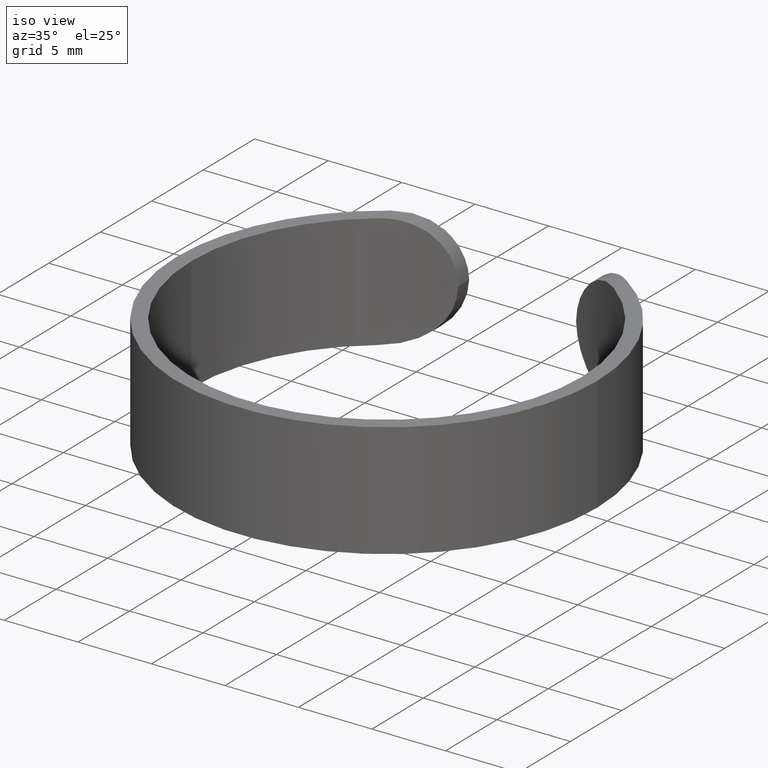
[diagram: clean part render]
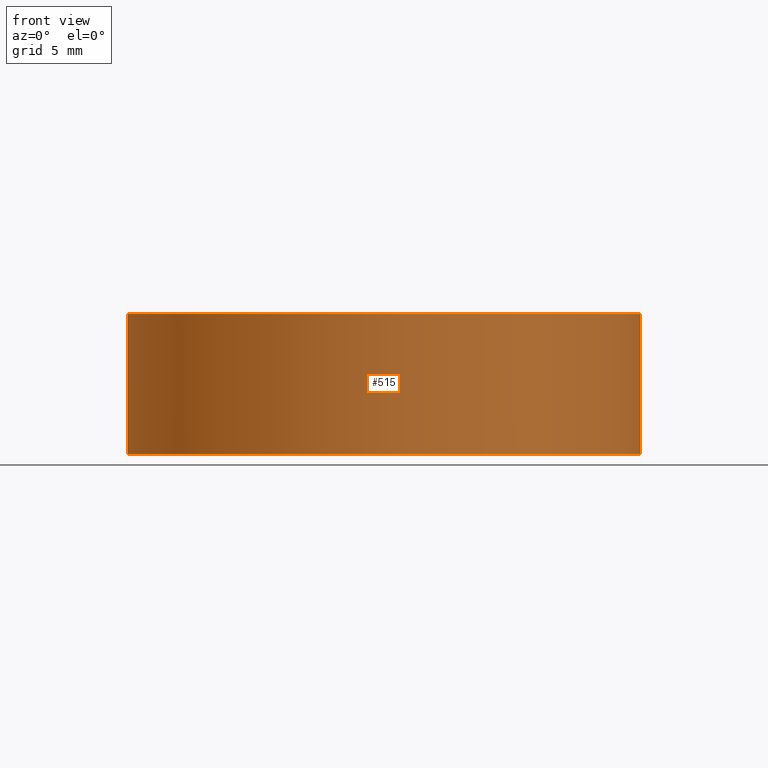
[diagram: tour spotlight — one face highlighted and labeled with its STEP entity id]
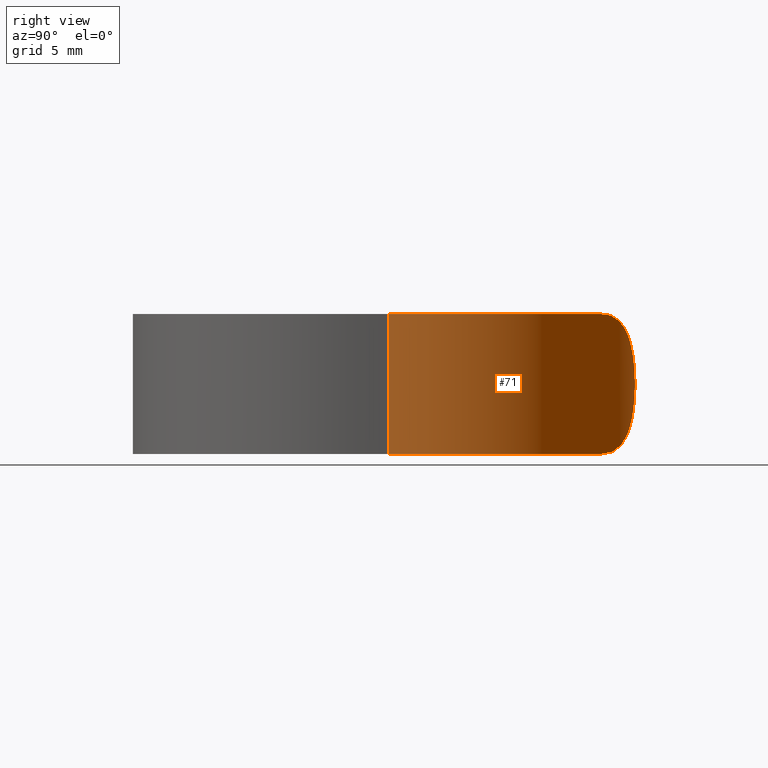
[diagram: tour spotlight — one face highlighted and labeled with its STEP entity id]
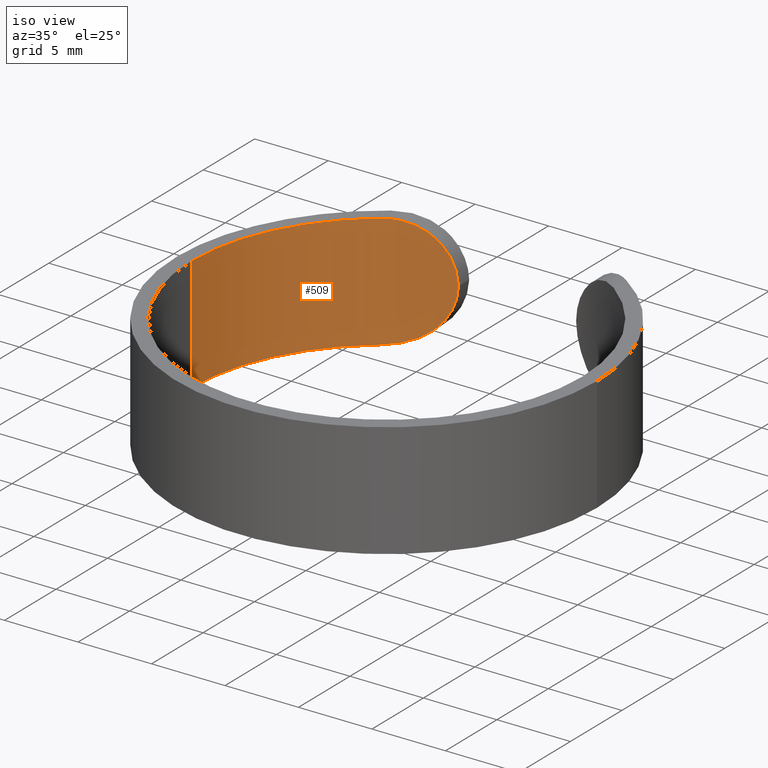
[diagram: tour spotlight — one face highlighted and labeled with its STEP entity id]
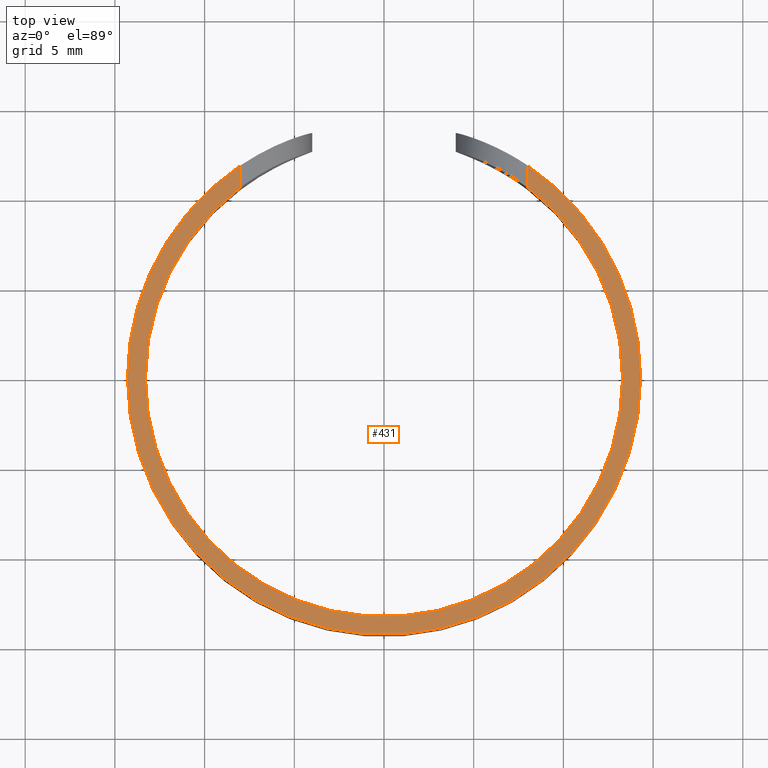
[diagram: tour spotlight — one face highlighted and labeled with its STEP entity id]
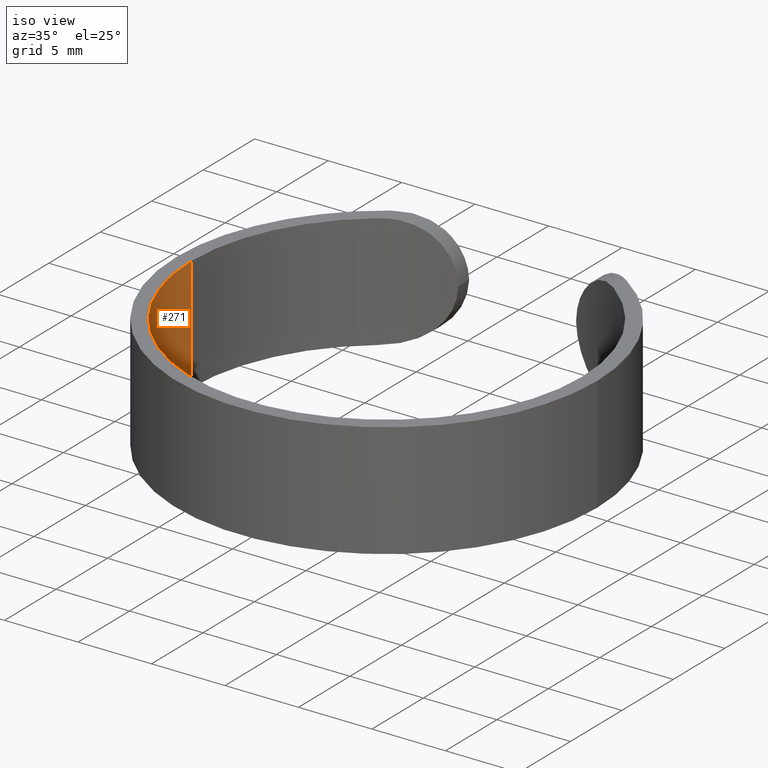
[diagram: tour spotlight — one face highlighted and labeled with its STEP entity id]
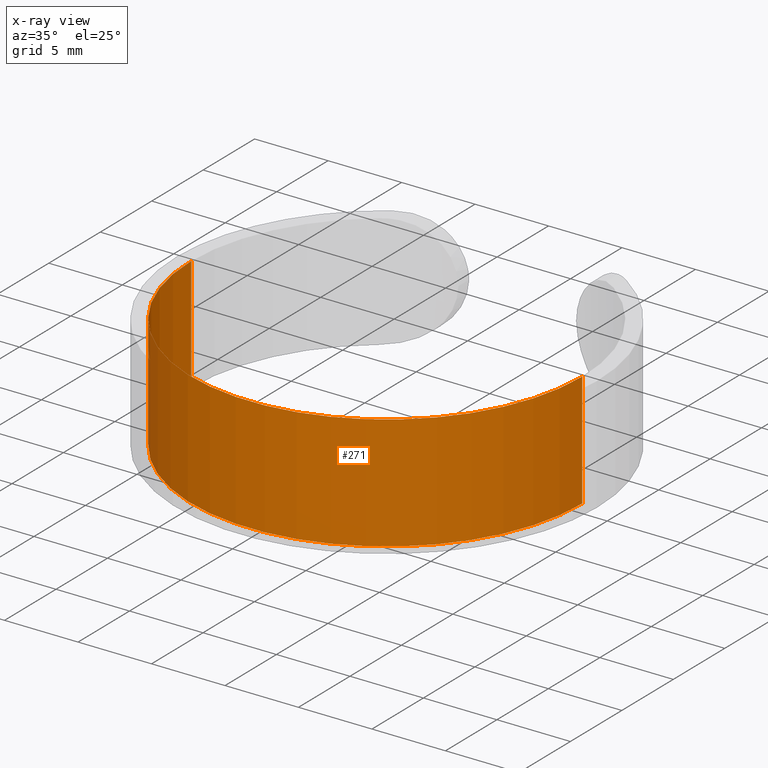
[diagram: x-ray of the same camera — body ghosted, this tour face saturated]
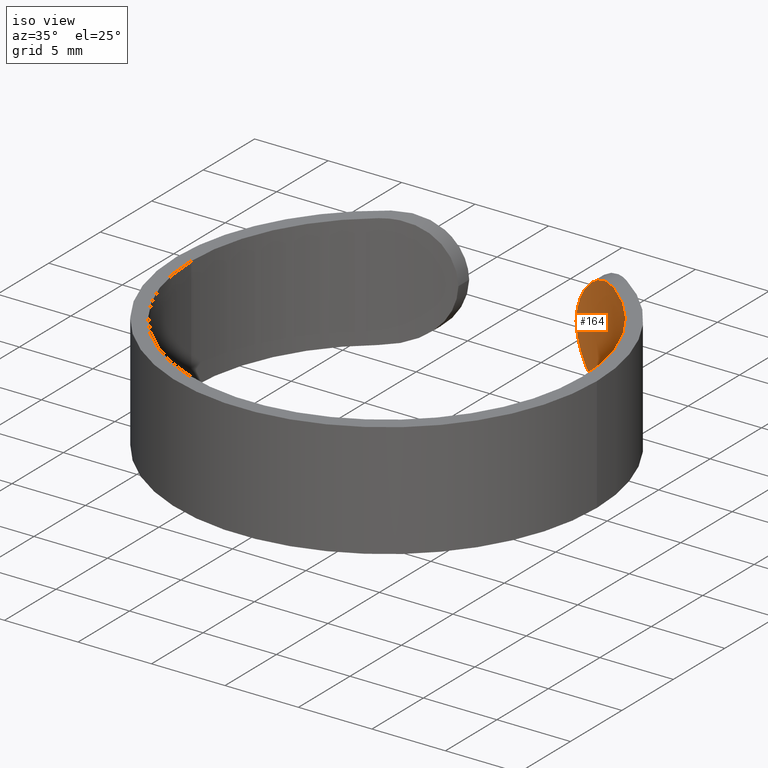
[diagram: tour spotlight — one face highlighted and labeled with its STEP entity id]
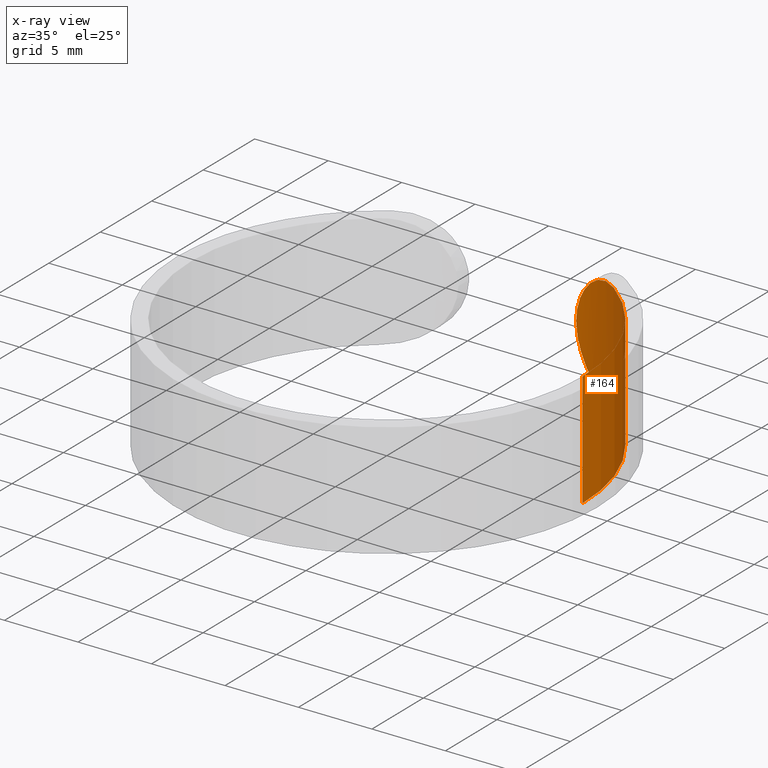
[diagram: x-ray of the same camera — body ghosted, this tour face saturated]
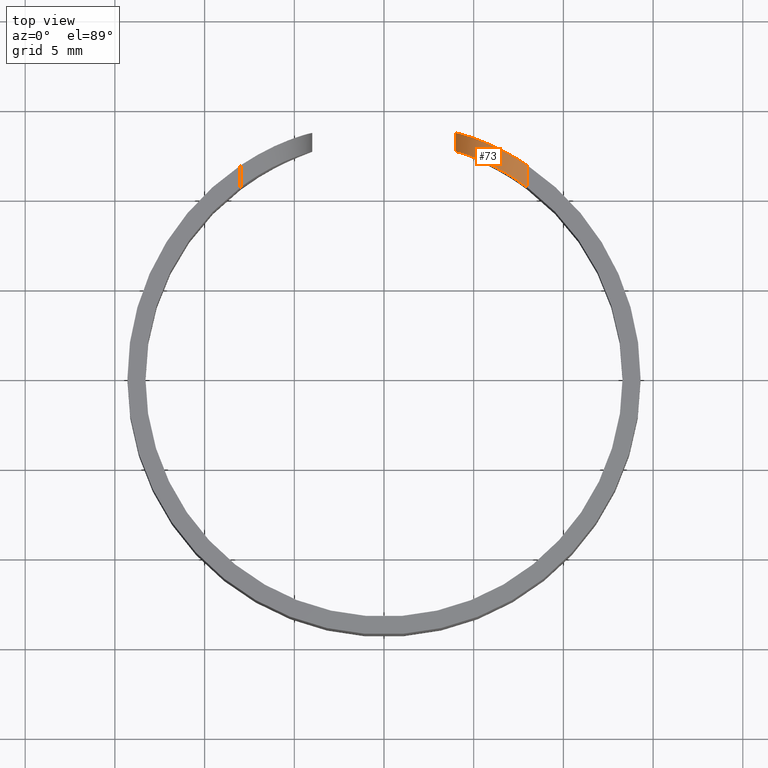
[diagram: tour spotlight — one face highlighted and labeled with its STEP entity id]
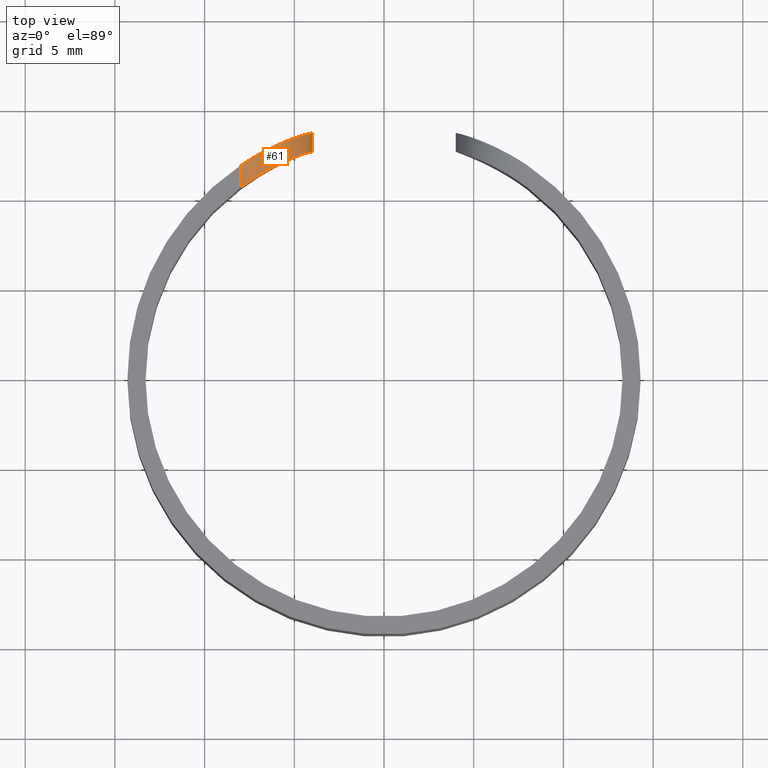
[diagram: tour spotlight — one face highlighted and labeled with its STEP entity id]
A machine part: a face-by-face anatomy tour. The part has 12 B-rep faces; the first image is the clean iso view, then the 8 largest visible faces are spotlighted one at a time (largest first), each with its STEP entity span.

Face 1 — front view, entity #515. In plain terms, the highlighted cylindrical surface (partial cylindrical patch) has radius 14.3 mm, axis along (-0, -0, -1).
Definition (entity closure, byte-faithful):
#14 = EDGE_LOOP ( 'NONE', ( #475, #232, #216, #30 ) ) ;
#18 = CARTESIAN_POINT ( 'NONE',  ( -14.30000000000000100, 0.0000000000000000000, 7.799999999999999800 ) ) ;
#30 = ORIENTED_EDGE ( 'NONE', *, *, #276, .T. ) ;
#59 = CARTESIAN_POINT ( 'NONE',  ( 14.30000000000000100, 1.751244922780715100E-015, 7.799999999999999800 ) ) ;
#67 = VERTEX_POINT ( 'NONE', #537 ) ;
#120 = AXIS2_PLACEMENT_3D ( 'NONE', #559, #385, #603 ) ;
#153 = LINE ( 'NONE', #18, #414 ) ;
#162 = CYLINDRICAL_SURFACE ( 'NONE', #120, 14.30000000000000100 ) ;
#168 = CIRCLE ( 'NONE', #481, 14.30000000000000100 ) ;
#185 = VERTEX_POINT ( 'NONE', #355 ) ;
#215 = CARTESIAN_POINT ( 'NONE',  ( -14.30000000000000100, 0.0000000000000000000, 0.0000000000000000000 ) ) ;
#216 = ORIENTED_EDGE ( 'NONE', *, *, #547, .T. ) ;
#232 = ORIENTED_EDGE ( 'NONE', *, *, #374, .F. ) ;
#253 = DIRECTION ( 'NONE',  ( 0.0000000000000000000, 0.0000000000000000000, 1.000000000000000000 ) ) ;
#263 = DIRECTION ( 'NONE',  ( 0.0000000000000000000, 0.0000000000000000000, 1.000000000000000000 ) ) ;
#270 = DIRECTION ( 'NONE',  ( -0.0000000000000000000, -0.0000000000000000000, -1.000000000000000000 ) ) ;
#276 = EDGE_CURVE ( 'NONE', #382, #608, #307, .T. ) ;
#307 = CIRCLE ( 'NONE', #470, 14.30000000000000100 ) ;
#353 = EDGE_CURVE ( 'NONE', #185, #608, #408, .T. ) ;
#355 = CARTESIAN_POINT ( 'NONE',  ( 14.30000000000000100, 1.751244922780715100E-015, 7.799999999999999800 ) ) ;
#363 = FACE_OUTER_BOUND ( 'NONE', #14, .T. ) ;
#374 = EDGE_CURVE ( 'NONE', #67, #185, #168, .T. ) ;
#378 = CARTESIAN_POINT ( 'NONE',  ( 14.30000000000000100, 1.751244922780715100E-015, 0.0000000000000000000 ) ) ;
#382 = VERTEX_POINT ( 'NONE', #215 ) ;
#385 = DIRECTION ( 'NONE',  ( -0.0000000000000000000, -0.0000000000000000000, -1.000000000000000000 ) ) ;
#408 = LINE ( 'NONE', #59, #510 ) ;
#414 = VECTOR ( 'NONE', #270, 1000.000000000000000 ) ;
#420 = DIRECTION ( 'NONE',  ( 1.000000000000000000, 0.0000000000000000000, 0.0000000000000000000 ) ) ;
#467 = CARTESIAN_POINT ( 'NONE',  ( 0.0000000000000000000, 0.0000000000000000000, 0.0000000000000000000 ) ) ;
#470 = AXIS2_PLACEMENT_3D ( 'NONE', #467, #253, #420 ) ;
#471 = CARTESIAN_POINT ( 'NONE',  ( 0.0000000000000000000, 0.0000000000000000000, 7.799999999999999800 ) ) ;
#475 = ORIENTED_EDGE ( 'NONE', *, *, #353, .F. ) ;
#481 = AXIS2_PLACEMENT_3D ( 'NONE', #471, #263, #517 ) ;
#510 = VECTOR ( 'NONE', #553, 1000.000000000000000 ) ;
#515 = ADVANCED_FACE ( 'NONE', ( #363 ), #162, .T. ) ;
#517 = DIRECTION ( 'NONE',  ( 1.000000000000000000, 0.0000000000000000000, 0.0000000000000000000 ) ) ;
#537 = CARTESIAN_POINT ( 'NONE',  ( -14.30000000000000100, 0.0000000000000000000, 7.799999999999999800 ) ) ;
#547 = EDGE_CURVE ( 'NONE', #67, #382, #153, .T. ) ;
#553 = DIRECTION ( 'NONE',  ( -0.0000000000000000000, -0.0000000000000000000, -1.000000000000000000 ) ) ;
#559 = CARTESIAN_POINT ( 'NONE',  ( 0.0000000000000000000, 0.0000000000000000000, 7.799999999999999800 ) ) ;
#603 = DIRECTION ( 'NONE',  ( -1.000000000000000000, 0.0000000000000000000, 0.0000000000000000000 ) ) ;
#608 = VERTEX_POINT ( 'NONE', #378 ) ;

Face 2 — right view, entity #71. In plain terms, the highlighted cylindrical surface (partial cylindrical patch) has radius 14.3 mm, axis along (-0, -0, -1).
Definition (entity closure, byte-faithful):
#6 = FACE_OUTER_BOUND ( 'NONE', #507, .T. ) ;
#13 = B_SPLINE_CURVE_WITH_KNOTS ( 'NONE', 3,
 ( #184, #403, #578, #291, #483, #402, #583, #533, #93, #40, #235, #346, #450, #96 ),
 .UNSPECIFIED., .F., .F.,
 ( 4, 2, 2, 2, 2, 2, 4 ),
 ( 0.0000000000000000000, 0.001632351047955030300, 0.003264702095910060700, 0.004080877619887577100, 0.004897053143865094500, 0.005713228667842611000, 0.006529404191820127400 ),
 .UNSPECIFIED. ) ;
#31 = CARTESIAN_POINT ( 'NONE',  ( 4.008124548580371800, 13.72679820183551100, 4.174888185426808300 ) ) ;
#34 = CARTESIAN_POINT ( 'NONE',  ( 4.621481148784671000, 13.53369142352955000, 5.958327457209673400 ) ) ;
#36 = EDGE_CURVE ( 'NONE', #451, #566, #319, .T. ) ;
#39 = ORIENTED_EDGE ( 'NONE', *, *, #112, .T. ) ;
#40 = CARTESIAN_POINT ( 'NONE',  ( 4.258378439978965700, 13.65176403445461000, 2.559874251310468600 ) ) ;
#59 = CARTESIAN_POINT ( 'NONE',  ( 14.30000000000000100, 1.751244922780715100E-015, 7.799999999999999800 ) ) ;
#65 = EDGE_CURVE ( 'NONE', #185, #566, #139, .T. ) ;
#71 = ADVANCED_FACE ( 'NONE', ( #6 ), #313, .T. ) ;
#80 = EDGE_CURVE ( 'NONE', #588, #451, #13, .T. ) ;
#85 = CARTESIAN_POINT ( 'NONE',  ( 6.155557076127585100, 12.90955662557230000, 7.358496191922345300 ) ) ;
#88 = DIRECTION ( 'NONE',  ( 1.000000000000000000, 0.0000000000000000000, 0.0000000000000000000 ) ) ;
#93 = CARTESIAN_POINT ( 'NONE',  ( 4.487264096918515600, 13.57825132758309800, 2.067545460908559700 ) ) ;
#96 = CARTESIAN_POINT ( 'NONE',  ( 4.001250195373558900, 13.72880172753700600, 3.900000000000001200 ) ) ;
#103 = AXIS2_PLACEMENT_3D ( 'NONE', #395, #135, #407 ) ;
#112 = EDGE_CURVE ( 'NONE', #608, #588, #607, .T. ) ;
#131 = CARTESIAN_POINT ( 'NONE',  ( 7.771744640839312300, 12.00690718095373200, 7.800000000000001600 ) ) ;
#135 = DIRECTION ( 'NONE',  ( -0.0000000000000000000, -0.0000000000000000000, -1.000000000000000000 ) ) ;
#139 = CIRCLE ( 'NONE', #574, 14.30000000000000100 ) ;
#143 = ORIENTED_EDGE ( 'NONE', *, *, #36, .T. ) ;
#144 = ORIENTED_EDGE ( 'NONE', *, *, #353, .T. ) ;
#173 = CARTESIAN_POINT ( 'NONE',  ( 4.001250195373558900, 13.72880172753700600, 3.900000000000001200 ) ) ;
#184 = CARTESIAN_POINT ( 'NONE',  ( 8.000000000000000000, 11.85284775908304600, 0.0000000000000000000 ) ) ;
#185 = VERTEX_POINT ( 'NONE', #355 ) ;
#235 = CARTESIAN_POINT ( 'NONE',  ( 4.169468177214761300, 13.67880939680075300, 2.816017338801974500 ) ) ;
#273 = CARTESIAN_POINT ( 'NONE',  ( 4.042941069126476900, 13.71673453931510300, 4.444817385831158600 ) ) ;
#275 = CARTESIAN_POINT ( 'NONE',  ( 5.719132112650868300, 13.10873994952862300, 7.095831689848311400 ) ) ;
#280 = CARTESIAN_POINT ( 'NONE',  ( 5.120549407433818700, 13.35340603572798900, 6.588728651696706100 ) ) ;
#283 = CARTESIAN_POINT ( 'NONE',  ( 4.166788870306882900, 13.67962168412401900, 4.974988203631364000 ) ) ;
#291 = CARTESIAN_POINT ( 'NONE',  ( 6.149315798943346700, 12.92093264886531400, 0.4194594853418252600 ) ) ;
#299 = CARTESIAN_POINT ( 'NONE',  ( 0.0000000000000000000, 0.0000000000000000000, 0.0000000000000000000 ) ) ;
#313 = CYLINDRICAL_SURFACE ( 'NONE', #103, 14.30000000000000100 ) ;
#319 = B_SPLINE_CURVE_WITH_KNOTS ( 'NONE', 3,
 ( #173, #31, #273, #283, #567, #338, #34, #565, #280, #436, #275, #85, #392, #616, #336, #477, #131, #561 ),
 .UNSPECIFIED., .F., .F.,
 ( 4, 2, 2, 2, 2, 2, 2, 2, 4 ),
 ( 9.879584281405714300E-005, 0.0009153359142974322300, 0.001731875985780807400, 0.002548416057264182900, 0.003364956128747557900, 0.004181496200230932400, 0.004998036271714308100, 0.005814576343197683100, 0.006631116414681058000 ),
 .UNSPECIFIED. ) ;
#327 = CARTESIAN_POINT ( 'NONE',  ( 8.000000000000000000, 11.85284775908304600, 0.0000000000000000000 ) ) ;
#336 = CARTESIAN_POINT ( 'NONE',  ( 7.077956591376040900, 12.42840499251818000, 7.699385022103081500 ) ) ;
#338 = CARTESIAN_POINT ( 'NONE',  ( 4.484444449935240100, 13.57917492657520200, 5.727133444197630000 ) ) ;
#346 = CARTESIAN_POINT ( 'NONE',  ( 4.043969720835552700, 13.71643540763329500, 3.348376322006298100 ) ) ;
#348 = DIRECTION ( 'NONE',  ( 0.0000000000000000000, 0.0000000000000000000, 1.000000000000000000 ) ) ;
#353 = EDGE_CURVE ( 'NONE', #185, #608, #408, .T. ) ;
#355 = CARTESIAN_POINT ( 'NONE',  ( 14.30000000000000100, 1.751244922780715100E-015, 7.799999999999999800 ) ) ;
#378 = CARTESIAN_POINT ( 'NONE',  ( 14.30000000000000100, 1.751244922780715100E-015, 0.0000000000000000000 ) ) ;
#392 = CARTESIAN_POINT ( 'NONE',  ( 6.380845343354614000, 12.80010208917718200, 7.465916713940576000 ) ) ;
#395 = CARTESIAN_POINT ( 'NONE',  ( 0.0000000000000000000, 0.0000000000000000000, 7.799999999999999800 ) ) ;
#402 = CARTESIAN_POINT ( 'NONE',  ( 5.122740215770961400, 13.35261186955478000, 1.208705724539451200 ) ) ;
#403 = CARTESIAN_POINT ( 'NONE',  ( 7.543198299508158100, 12.16116299928634300, 0.0000000000000000000 ) ) ;
#405 = CARTESIAN_POINT ( 'NONE',  ( 0.0000000000000000000, 0.0000000000000000000, 7.799999999999999800 ) ) ;
#407 = DIRECTION ( 'NONE',  ( -1.000000000000000000, 0.0000000000000000000, 0.0000000000000000000 ) ) ;
#408 = LINE ( 'NONE', #59, #510 ) ;
#428 = CARTESIAN_POINT ( 'NONE',  ( 4.001250195373558900, 13.72880172753700600, 3.900000000000001200 ) ) ;
#436 = CARTESIAN_POINT ( 'NONE',  ( 5.507716314925355400, 13.19842945138899800, 6.939548572794283400 ) ) ;
#441 = ORIENTED_EDGE ( 'NONE', *, *, #80, .T. ) ;
#446 = AXIS2_PLACEMENT_3D ( 'NONE', #299, #624, #88 ) ;
#450 = CARTESIAN_POINT ( 'NONE',  ( 4.008149827863912100, 13.72679083420503700, 3.624100959272100300 ) ) ;
#451 = VERTEX_POINT ( 'NONE', #428 ) ;
#477 = CARTESIAN_POINT ( 'NONE',  ( 7.541502812815539700, 12.15271391466736100, 7.780596428593672600 ) ) ;
#483 = CARTESIAN_POINT ( 'NONE',  ( 5.711574689143696500, 13.11665958997724600, 0.6769140863838258900 ) ) ;
#507 = EDGE_LOOP ( 'NONE', ( #521, #144, #39, #441, #143 ) ) ;
#510 = VECTOR ( 'NONE', #553, 1000.000000000000000 ) ;
#521 = ORIENTED_EDGE ( 'NONE', *, *, #65, .F. ) ;
#533 = CARTESIAN_POINT ( 'NONE',  ( 4.627887841806829000, 13.53148018170982800, 1.832111593888360500 ) ) ;
#553 = DIRECTION ( 'NONE',  ( -0.0000000000000000000, -0.0000000000000000000, -1.000000000000000000 ) ) ;
#561 = CARTESIAN_POINT ( 'NONE',  ( 8.000000000000000000, 11.85284775908304600, 7.799999999999999800 ) ) ;
#563 = CARTESIAN_POINT ( 'NONE',  ( 8.000000000000000000, 11.85284775908304600, 7.799999999999999800 ) ) ;
#565 = CARTESIAN_POINT ( 'NONE',  ( 4.941863045903742700, 13.42001792813334600, 6.392405332997404900 ) ) ;
#566 = VERTEX_POINT ( 'NONE', #563 ) ;
#567 = CARTESIAN_POINT ( 'NONE',  ( 4.257253450088213300, 13.65210704517055800, 5.236948990207929800 ) ) ;
#574 = AXIS2_PLACEMENT_3D ( 'NONE', #405, #348, #579 ) ;
#578 = CARTESIAN_POINT ( 'NONE',  ( 7.078502477155830700, 12.43621276725943900, 0.07620786680265236000 ) ) ;
#579 = DIRECTION ( 'NONE',  ( 1.000000000000000000, 0.0000000000000000000, 0.0000000000000000000 ) ) ;
#583 = CARTESIAN_POINT ( 'NONE',  ( 4.944943233823261500, 13.41886128546736300, 1.404328852834934900 ) ) ;
#588 = VERTEX_POINT ( 'NONE', #327 ) ;
#607 = CIRCLE ( 'NONE', #446, 14.30000000000000100 ) ;
#608 = VERTEX_POINT ( 'NONE', #378 ) ;
#616 = CARTESIAN_POINT ( 'NONE',  ( 6.842609978885326100, 12.55931882969881700, 7.636802769847506100 ) ) ;
#624 = DIRECTION ( 'NONE',  ( 0.0000000000000000000, 0.0000000000000000000, 1.000000000000000000 ) ) ;

Face 3 — iso view, entity #509. In plain terms, the highlighted cylindrical surface (partial cylindrical patch) has radius 13.3 mm, axis along (-0, -0, -1).
Definition (entity closure, byte-faithful):
#1 = CARTESIAN_POINT ( 'NONE',  ( -5.738272423542851700, 12.00623852788408100, 0.6584001396389406200 ) ) ;
#12 = CARTESIAN_POINT ( 'NONE',  ( -8.000000000000003600, 10.62497058819458600, 7.799999999999999800 ) ) ;
#24 = DIRECTION ( 'NONE',  ( -0.0000000000000000000, -0.0000000000000000000, -1.000000000000000000 ) ) ;
#25 = DIRECTION ( 'NONE',  ( -1.000000000000000000, 0.0000000000000000000, 0.0000000000000000000 ) ) ;
#38 = LINE ( 'NONE', #526, #268 ) ;
#47 = ORIENTED_EDGE ( 'NONE', *, *, #568, .T. ) ;
#50 = DIRECTION ( 'NONE',  ( -0.0000000000000000000, -0.0000000000000000000, -1.000000000000000000 ) ) ;
#52 = CARTESIAN_POINT ( 'NONE',  ( -4.721002348129403000, 12.43421012007838700, 1.705195174883109600 ) ) ;
#55 = DIRECTION ( 'NONE',  ( 1.000000000000000000, 0.0000000000000000000, 0.0000000000000000000 ) ) ;
#70 = ORIENTED_EDGE ( 'NONE', *, *, #237, .T. ) ;
#82 = AXIS2_PLACEMENT_3D ( 'NONE', #240, #50, #55 ) ;
#87 = CARTESIAN_POINT ( 'NONE',  ( -13.30000000000000200, 0.0000000000000000000, 0.0000000000000000000 ) ) ;
#92 = VERTEX_POINT ( 'NONE', #352 ) ;
#95 = CARTESIAN_POINT ( 'NONE',  ( -8.000000000000003600, 10.62497058819458400, 0.0000000000000000000 ) ) ;
#101 = CARTESIAN_POINT ( 'NONE',  ( -8.000000000000003600, 10.62497058819458400, 0.0000000000000000000 ) ) ;
#113 = CARTESIAN_POINT ( 'NONE',  ( -4.262677856248096500, 12.59899255841704900, 5.251477777775511100 ) ) ;
#118 = B_SPLINE_CURVE_WITH_KNOTS ( 'NONE', 3,
 ( #101, #589, #455, #194, #1, #359, #187, #52, #244, #246, #498, #301, #542, #305, #415, #410 ),
 .UNSPECIFIED., .F., .F.,
 ( 4, 2, 2, 2, 2, 2, 2, 4 ),
 ( 7.086159335439084400E-020, 0.001651043253028165700, 0.003302086506056331500, 0.004127608132570415200, 0.004540368945827458400, 0.004953129759084500700, 0.005778651385598587900, 0.006604173012112675100 ),
 .UNSPECIFIED. ) ;
#121 = CARTESIAN_POINT ( 'NONE',  ( -4.494250095725002200, 12.51825675045339300, 5.745271743029827700 ) ) ;
#125 = CARTESIAN_POINT ( 'NONE',  ( 0.0000000000000000000, 0.0000000000000000000, 7.799999999999999800 ) ) ;
#149 = VERTEX_POINT ( 'NONE', #95 ) ;
#150 = CARTESIAN_POINT ( 'NONE',  ( -4.634010451436060900, 12.46781662030819900, 5.978090862560284400 ) ) ;
#154 = CARTESIAN_POINT ( 'NONE',  ( -4.043749899371699800, 12.67053715066016300, 4.451082437143175400 ) ) ;
#155 = VERTEX_POINT ( 'NONE', #87 ) ;
#159 = CARTESIAN_POINT ( 'NONE',  ( -7.552225593220188500, 10.95117729015023400, 7.781563933182970200 ) ) ;
#171 = AXIS2_PLACEMENT_3D ( 'NONE', #433, #229, #528 ) ;
#187 = CARTESIAN_POINT ( 'NONE',  ( -4.962390378616536400, 12.34076414390234100, 1.383753273582688700 ) ) ;
#194 = CARTESIAN_POINT ( 'NONE',  ( -6.175500565399101300, 11.79139101574453400, 0.4066390124381935000 ) ) ;
#202 = EDGE_CURVE ( 'NONE', #155, #149, #625, .T. ) ;
#207 = ORIENTED_EDGE ( 'NONE', *, *, #324, .T. ) ;
#229 = DIRECTION ( 'NONE',  ( -0.0000000000000000000, -0.0000000000000000000, -1.000000000000000000 ) ) ;
#237 = EDGE_CURVE ( 'NONE', #149, #458, #118, .T. ) ;
#240 = CARTESIAN_POINT ( 'NONE',  ( 0.0000000000000000000, 0.0000000000000000000, 0.0000000000000000000 ) ) ;
#244 = CARTESIAN_POINT ( 'NONE',  ( -4.645429432850651400, 12.46256811476165900, 1.817015836881626000 ) ) ;
#246 = CARTESIAN_POINT ( 'NONE',  ( -4.504663114868105100, 12.51413715971723800, 2.050337566180546300 ) ) ;
#252 = ORIENTED_EDGE ( 'NONE', *, *, #631, .F. ) ;
#256 = CARTESIAN_POINT ( 'NONE',  ( -5.531456860271902100, 12.09704850308134500, 6.958331137895793700 ) ) ;
#259 = CARTESIAN_POINT ( 'NONE',  ( -6.405956961531273000, 11.65864363216906500, 7.476784112635848500 ) ) ;
#268 = VECTOR ( 'NONE', #24, 1000.000000000000000 ) ;
#272 = DIRECTION ( 'NONE',  ( -0.0000000000000000000, -0.0000000000000000000, -1.000000000000000000 ) ) ;
#301 = CARTESIAN_POINT ( 'NONE',  ( -4.263729087994542000, 12.59864926940742100, 2.545435295234465200 ) ) ;
#305 = CARTESIAN_POINT ( 'NONE',  ( -4.044905062134344800, 12.67017268474028100, 3.341563236687407700 ) ) ;
#318 = CARTESIAN_POINT ( 'NONE',  ( -6.181103184009121100, 11.77894823586526100, 7.371550962877199400 ) ) ;
#324 = EDGE_CURVE ( 'NONE', #458, #364, #418, .T. ) ;
#343 = ORIENTED_EDGE ( 'NONE', *, *, #202, .T. ) ;
#352 = CARTESIAN_POINT ( 'NONE',  ( -13.30000000000000200, 0.0000000000000000000, 7.799999999999999800 ) ) ;
#359 = CARTESIAN_POINT ( 'NONE',  ( -5.143387717964073700, 12.26712868936764200, 1.187493718346659000 ) ) ;
#364 = VERTEX_POINT ( 'NONE', #12 ) ;
#365 = CARTESIAN_POINT ( 'NONE',  ( -5.140262162607967900, 12.26838629904571000, 6.609031916993666700 ) ) ;
#391 = CYLINDRICAL_SURFACE ( 'NONE', #618, 13.30000000000000200 ) ;
#410 = CARTESIAN_POINT ( 'NONE',  ( -4.001250195373562400, 12.68384787333966400, 3.899999999999975500 ) ) ;
#415 = CARTESIAN_POINT ( 'NONE',  ( -4.008233524764626100, 12.68164491029806700, 3.620754129618392300 ) ) ;
#418 = B_SPLINE_CURVE_WITH_KNOTS ( 'NONE', 3,
 ( #422, #461, #154, #595, #113, #121, #150, #552, #365, #256, #598, #318, #259, #548, #511, #159, #506, #554 ),
 .UNSPECIFIED., .F., .F.,
 ( 4, 2, 2, 2, 2, 2, 2, 2, 4 ),
 ( 9.879671363177874600E-005, 0.0009248834951915953400, 0.001750970276751412100, 0.002577057058311228500, 0.003403143839871045100, 0.004229230621430862100, 0.005055317402990678300, 0.005881404184550494500, 0.006707490966110311500 ),
 .UNSPECIFIED. ) ;
#421 = CIRCLE ( 'NONE', #171, 13.30000000000000200 ) ;
#422 = CARTESIAN_POINT ( 'NONE',  ( -4.001250195373562400, 12.68384787333966400, 3.899999999999975500 ) ) ;
#432 = EDGE_LOOP ( 'NONE', ( #252, #47, #343, #70, #207 ) ) ;
#433 = CARTESIAN_POINT ( 'NONE',  ( 0.0000000000000000000, 0.0000000000000000000, 7.799999999999999800 ) ) ;
#455 = CARTESIAN_POINT ( 'NONE',  ( -7.098663142009471900, 11.25978201013241900, 0.07207010726796017600 ) ) ;
#458 = VERTEX_POINT ( 'NONE', #522 ) ;
#461 = CARTESIAN_POINT ( 'NONE',  ( -4.008204753639499400, 12.68165398644522500, 4.178095385071903100 ) ) ;
#498 = CARTESIAN_POINT ( 'NONE',  ( -4.439196632092512500, 12.53743875554159200, 2.172556682914457600 ) ) ;
#506 = CARTESIAN_POINT ( 'NONE',  ( -7.777549088741573700, 10.79246350267331400, 7.800000000000000700 ) ) ;
#509 = ADVANCED_FACE ( 'NONE', ( #630 ), #391, .F. ) ;
#511 = CARTESIAN_POINT ( 'NONE',  ( -7.096892876479519600, 11.25160019512631500, 7.703556173137131100 ) ) ;
#522 = CARTESIAN_POINT ( 'NONE',  ( -4.001250195373562400, 12.68384787333966400, 3.899999999999975500 ) ) ;
#526 = CARTESIAN_POINT ( 'NONE',  ( -13.30000000000000200, 0.0000000000000000000, 7.799999999999999800 ) ) ;
#528 = DIRECTION ( 'NONE',  ( 1.000000000000000000, 0.0000000000000000000, 0.0000000000000000000 ) ) ;
#542 = CARTESIAN_POINT ( 'NONE',  ( -4.172970434440523000, 12.62857278460650400, 2.804107177400192400 ) ) ;
#548 = CARTESIAN_POINT ( 'NONE',  ( -6.865380827934232300, 11.39415648577551800, 7.643482009038522500 ) ) ;
#552 = CARTESIAN_POINT ( 'NONE',  ( -4.959808417009844200, 12.34183149326753400, 6.413656554585179100 ) ) ;
#554 = CARTESIAN_POINT ( 'NONE',  ( -8.000000000000003600, 10.62497058819458600, 7.799999999999999800 ) ) ;
#568 = EDGE_CURVE ( 'NONE', #92, #155, #38, .T. ) ;
#589 = CARTESIAN_POINT ( 'NONE',  ( -7.554753132268639400, 10.96021621662094800, -1.084202172485500500E-016 ) ) ;
#595 = CARTESIAN_POINT ( 'NONE',  ( -4.170288253403242600, 12.62945449409651900, 4.987068294857780700 ) ) ;
#598 = CARTESIAN_POINT ( 'NONE',  ( -5.744448172779780000, 11.99795704713131700, 7.113132635795667000 ) ) ;
#618 = AXIS2_PLACEMENT_3D ( 'NONE', #125, #272, #25 ) ;
#625 = CIRCLE ( 'NONE', #82, 13.30000000000000200 ) ;
#630 = FACE_OUTER_BOUND ( 'NONE', #432, .T. ) ;
#631 = EDGE_CURVE ( 'NONE', #92, #364, #421, .T. ) ;

Face 4 — top view, entity #431. In plain terms, the highlighted planar face has unit normal (0, 0, 1).
Definition (entity closure, byte-faithful):
#9 = CARTESIAN_POINT ( 'NONE',  ( 8.000000000000000000, 10.62497058819458900, 7.799999999999999800 ) ) ;
#12 = CARTESIAN_POINT ( 'NONE',  ( -8.000000000000003600, 10.62497058819458600, 7.799999999999999800 ) ) ;
#16 = DIRECTION ( 'NONE',  ( -0.0000000000000000000, -0.0000000000000000000, -1.000000000000000000 ) ) ;
#56 = ORIENTED_EDGE ( 'NONE', *, *, #79, .T. ) ;
#63 = VERTEX_POINT ( 'NONE', #397 ) ;
#65 = EDGE_CURVE ( 'NONE', #185, #566, #139, .T. ) ;
#67 = VERTEX_POINT ( 'NONE', #537 ) ;
#76 = LINE ( 'NONE', #138, #443 ) ;
#79 = EDGE_CURVE ( 'NONE', #566, #279, #76, .T. ) ;
#90 = AXIS2_PLACEMENT_3D ( 'NONE', #191, #147, #302 ) ;
#92 = VERTEX_POINT ( 'NONE', #352 ) ;
#106 = CIRCLE ( 'NONE', #90, 13.30000000000000200 ) ;
#128 = AXIS2_PLACEMENT_3D ( 'NONE', #560, #129, #609 ) ;
#129 = DIRECTION ( 'NONE',  ( 0.0000000000000000000, 0.0000000000000000000, 1.000000000000000000 ) ) ;
#130 = DIRECTION ( 'NONE',  ( 1.000000000000000000, 0.0000000000000000000, -0.0000000000000000000 ) ) ;
#132 = CIRCLE ( 'NONE', #128, 14.30000000000000100 ) ;
#138 = CARTESIAN_POINT ( 'NONE',  ( 8.000000000000000000, 12.68424219257894900, 7.799999999999999800 ) ) ;
#139 = CIRCLE ( 'NONE', #574, 14.30000000000000100 ) ;
#147 = DIRECTION ( 'NONE',  ( -0.0000000000000000000, -0.0000000000000000000, -1.000000000000000000 ) ) ;
#168 = CIRCLE ( 'NONE', #481, 14.30000000000000100 ) ;
#171 = AXIS2_PLACEMENT_3D ( 'NONE', #433, #229, #528 ) ;
#180 = DIRECTION ( 'NONE',  ( 0.0000000000000000000, -1.000000000000000000, 0.0000000000000000000 ) ) ;
#185 = VERTEX_POINT ( 'NONE', #355 ) ;
#191 = CARTESIAN_POINT ( 'NONE',  ( 0.0000000000000000000, 0.0000000000000000000, 7.799999999999999800 ) ) ;
#199 = EDGE_LOOP ( 'NONE', ( #488, #208, #201, #56, #596, #394, #480, #576 ) ) ;
#200 = CARTESIAN_POINT ( 'NONE',  ( 0.0000000000000000000, 0.0000000000000000000, 7.799999999999999800 ) ) ;
#201 = ORIENTED_EDGE ( 'NONE', *, *, #65, .T. ) ;
#208 = ORIENTED_EDGE ( 'NONE', *, *, #374, .T. ) ;
#210 = EDGE_CURVE ( 'NONE', #63, #92, #106, .T. ) ;
#213 = CIRCLE ( 'NONE', #214, 13.30000000000000200 ) ;
#214 = AXIS2_PLACEMENT_3D ( 'NONE', #200, #16, #514 ) ;
#229 = DIRECTION ( 'NONE',  ( -0.0000000000000000000, -0.0000000000000000000, -1.000000000000000000 ) ) ;
#261 = CARTESIAN_POINT ( 'NONE',  ( -8.000000000000003600, 11.85284775908304400, 7.799999999999999800 ) ) ;
#263 = DIRECTION ( 'NONE',  ( 0.0000000000000000000, 0.0000000000000000000, 1.000000000000000000 ) ) ;
#279 = VERTEX_POINT ( 'NONE', #9 ) ;
#302 = DIRECTION ( 'NONE',  ( 1.000000000000000000, 0.0000000000000000000, 0.0000000000000000000 ) ) ;
#315 = EDGE_CURVE ( 'NONE', #279, #63, #213, .T. ) ;
#323 = DIRECTION ( 'NONE',  ( 0.0000000000000000000, 0.0000000000000000000, 1.000000000000000000 ) ) ;
#325 = DIRECTION ( 'NONE',  ( 8.300717270270221600E-016, 1.000000000000000000, -0.0000000000000000000 ) ) ;
#332 = VECTOR ( 'NONE', #325, 1000.000000000000000 ) ;
#348 = DIRECTION ( 'NONE',  ( 0.0000000000000000000, 0.0000000000000000000, 1.000000000000000000 ) ) ;
#349 = LINE ( 'NONE', #474, #332 ) ;
#352 = CARTESIAN_POINT ( 'NONE',  ( -13.30000000000000200, 0.0000000000000000000, 7.799999999999999800 ) ) ;
#355 = CARTESIAN_POINT ( 'NONE',  ( 14.30000000000000100, 1.751244922780715100E-015, 7.799999999999999800 ) ) ;
#364 = VERTEX_POINT ( 'NONE', #12 ) ;
#372 = VERTEX_POINT ( 'NONE', #261 ) ;
#374 = EDGE_CURVE ( 'NONE', #67, #185, #168, .T. ) ;
#376 = PLANE ( 'NONE',  #516 ) ;
#394 = ORIENTED_EDGE ( 'NONE', *, *, #210, .T. ) ;
#397 = CARTESIAN_POINT ( 'NONE',  ( 13.30000000000000200, 1.628780242865980200E-015, 7.799999999999999800 ) ) ;
#405 = CARTESIAN_POINT ( 'NONE',  ( 0.0000000000000000000, 0.0000000000000000000, 7.799999999999999800 ) ) ;
#421 = CIRCLE ( 'NONE', #171, 13.30000000000000200 ) ;
#424 = EDGE_CURVE ( 'NONE', #372, #67, #132, .T. ) ;
#431 = ADVANCED_FACE ( 'NONE', ( #487 ), #376, .T. ) ;
#433 = CARTESIAN_POINT ( 'NONE',  ( 0.0000000000000000000, 0.0000000000000000000, 7.799999999999999800 ) ) ;
#443 = VECTOR ( 'NONE', #180, 1000.000000000000000 ) ;
#471 = CARTESIAN_POINT ( 'NONE',  ( 0.0000000000000000000, 0.0000000000000000000, 7.799999999999999800 ) ) ;
#473 = CARTESIAN_POINT ( 'NONE',  ( 0.0000000000000000000, 0.0000000000000000000, 7.799999999999999800 ) ) ;
#474 = CARTESIAN_POINT ( 'NONE',  ( -8.000000000000001800, 13.72916603439553800, 7.799999999999999800 ) ) ;
#480 = ORIENTED_EDGE ( 'NONE', *, *, #631, .T. ) ;
#481 = AXIS2_PLACEMENT_3D ( 'NONE', #471, #263, #517 ) ;
#487 = FACE_OUTER_BOUND ( 'NONE', #199, .T. ) ;
#488 = ORIENTED_EDGE ( 'NONE', *, *, #424, .T. ) ;
#514 = DIRECTION ( 'NONE',  ( 1.000000000000000000, 0.0000000000000000000, 0.0000000000000000000 ) ) ;
#516 = AXIS2_PLACEMENT_3D ( 'NONE', #473, #323, #130 ) ;
#517 = DIRECTION ( 'NONE',  ( 1.000000000000000000, 0.0000000000000000000, 0.0000000000000000000 ) ) ;
#528 = DIRECTION ( 'NONE',  ( 1.000000000000000000, 0.0000000000000000000, 0.0000000000000000000 ) ) ;
#537 = CARTESIAN_POINT ( 'NONE',  ( -14.30000000000000100, 0.0000000000000000000, 7.799999999999999800 ) ) ;
#541 = EDGE_CURVE ( 'NONE', #364, #372, #349, .T. ) ;
#560 = CARTESIAN_POINT ( 'NONE',  ( 0.0000000000000000000, 0.0000000000000000000, 7.799999999999999800 ) ) ;
#563 = CARTESIAN_POINT ( 'NONE',  ( 8.000000000000000000, 11.85284775908304600, 7.799999999999999800 ) ) ;
#566 = VERTEX_POINT ( 'NONE', #563 ) ;
#574 = AXIS2_PLACEMENT_3D ( 'NONE', #405, #348, #579 ) ;
#576 = ORIENTED_EDGE ( 'NONE', *, *, #541, .T. ) ;
#579 = DIRECTION ( 'NONE',  ( 1.000000000000000000, 0.0000000000000000000, 0.0000000000000000000 ) ) ;
#596 = ORIENTED_EDGE ( 'NONE', *, *, #315, .T. ) ;
#609 = DIRECTION ( 'NONE',  ( 1.000000000000000000, 0.0000000000000000000, 0.0000000000000000000 ) ) ;
#631 = EDGE_CURVE ( 'NONE', #92, #364, #421, .T. ) ;

Face 5 — iso view, entity #271. An x-ray twin of the same camera follows (body ghosted, this face saturated) — the face is partly hidden behind the body. In plain terms, the highlighted cylindrical surface (partial cylindrical patch) has radius 13.3 mm, axis along (-0, -0, -1).
Definition (entity closure, byte-faithful):
#2 = DIRECTION ( 'NONE',  ( 1.000000000000000000, 0.0000000000000000000, 0.0000000000000000000 ) ) ;
#17 = DIRECTION ( 'NONE',  ( -1.000000000000000000, 0.0000000000000000000, 0.0000000000000000000 ) ) ;
#20 = CIRCLE ( 'NONE', #266, 13.30000000000000200 ) ;
#24 = DIRECTION ( 'NONE',  ( -0.0000000000000000000, -0.0000000000000000000, -1.000000000000000000 ) ) ;
#38 = LINE ( 'NONE', #526, #268 ) ;
#57 = DIRECTION ( 'NONE',  ( -0.0000000000000000000, -0.0000000000000000000, -1.000000000000000000 ) ) ;
#63 = VERTEX_POINT ( 'NONE', #397 ) ;
#87 = CARTESIAN_POINT ( 'NONE',  ( -13.30000000000000200, 0.0000000000000000000, 0.0000000000000000000 ) ) ;
#90 = AXIS2_PLACEMENT_3D ( 'NONE', #191, #147, #302 ) ;
#91 = LINE ( 'NONE', #267, #449 ) ;
#92 = VERTEX_POINT ( 'NONE', #352 ) ;
#106 = CIRCLE ( 'NONE', #90, 13.30000000000000200 ) ;
#140 = ORIENTED_EDGE ( 'NONE', *, *, #388, .T. ) ;
#147 = DIRECTION ( 'NONE',  ( -0.0000000000000000000, -0.0000000000000000000, -1.000000000000000000 ) ) ;
#155 = VERTEX_POINT ( 'NONE', #87 ) ;
#165 = CARTESIAN_POINT ( 'NONE',  ( 13.30000000000000200, 1.628780242865980200E-015, 0.0000000000000000000 ) ) ;
#188 = CARTESIAN_POINT ( 'NONE',  ( 0.0000000000000000000, 0.0000000000000000000, 0.0000000000000000000 ) ) ;
#191 = CARTESIAN_POINT ( 'NONE',  ( 0.0000000000000000000, 0.0000000000000000000, 7.799999999999999800 ) ) ;
#193 = ORIENTED_EDGE ( 'NONE', *, *, #195, .T. ) ;
#195 = EDGE_CURVE ( 'NONE', #409, #155, #20, .T. ) ;
#204 = DIRECTION ( 'NONE',  ( -0.0000000000000000000, -0.0000000000000000000, -1.000000000000000000 ) ) ;
#210 = EDGE_CURVE ( 'NONE', #63, #92, #106, .T. ) ;
#249 = FACE_OUTER_BOUND ( 'NONE', #497, .T. ) ;
#260 = ORIENTED_EDGE ( 'NONE', *, *, #568, .F. ) ;
#266 = AXIS2_PLACEMENT_3D ( 'NONE', #188, #57, #2 ) ;
#267 = CARTESIAN_POINT ( 'NONE',  ( 13.30000000000000200, 1.628780242865980200E-015, 7.799999999999999800 ) ) ;
#268 = VECTOR ( 'NONE', #24, 1000.000000000000000 ) ;
#271 = ADVANCED_FACE ( 'NONE', ( #249 ), #535, .F. ) ;
#302 = DIRECTION ( 'NONE',  ( 1.000000000000000000, 0.0000000000000000000, 0.0000000000000000000 ) ) ;
#350 = ORIENTED_EDGE ( 'NONE', *, *, #210, .F. ) ;
#352 = CARTESIAN_POINT ( 'NONE',  ( -13.30000000000000200, 0.0000000000000000000, 7.799999999999999800 ) ) ;
#377 = AXIS2_PLACEMENT_3D ( 'NONE', #599, #204, #17 ) ;
#388 = EDGE_CURVE ( 'NONE', #63, #409, #91, .T. ) ;
#397 = CARTESIAN_POINT ( 'NONE',  ( 13.30000000000000200, 1.628780242865980200E-015, 7.799999999999999800 ) ) ;
#409 = VERTEX_POINT ( 'NONE', #165 ) ;
#449 = VECTOR ( 'NONE', #605, 1000.000000000000000 ) ;
#497 = EDGE_LOOP ( 'NONE', ( #350, #140, #193, #260 ) ) ;
#526 = CARTESIAN_POINT ( 'NONE',  ( -13.30000000000000200, 0.0000000000000000000, 7.799999999999999800 ) ) ;
#535 = CYLINDRICAL_SURFACE ( 'NONE', #377, 13.30000000000000200 ) ;
#568 = EDGE_CURVE ( 'NONE', #92, #155, #38, .T. ) ;
#599 = CARTESIAN_POINT ( 'NONE',  ( 0.0000000000000000000, 0.0000000000000000000, 7.799999999999999800 ) ) ;
#605 = DIRECTION ( 'NONE',  ( -0.0000000000000000000, -0.0000000000000000000, -1.000000000000000000 ) ) ;

Face 6 — iso view, entity #164. An x-ray twin of the same camera follows (body ghosted, this face saturated) — the face is partly hidden behind the body. In plain terms, the highlighted cylindrical surface (partial cylindrical patch) has radius 13.3 mm, axis along (-0, -0, -1).
Definition (entity closure, byte-faithful):
#4 = CARTESIAN_POINT ( 'NONE',  ( 4.439196632092503600, 12.53743875554159400, 5.627443317085529800 ) ) ;
#9 = CARTESIAN_POINT ( 'NONE',  ( 8.000000000000000000, 10.62497058819458900, 7.799999999999999800 ) ) ;
#16 = DIRECTION ( 'NONE',  ( -0.0000000000000000000, -0.0000000000000000000, -1.000000000000000000 ) ) ;
#22 = ORIENTED_EDGE ( 'NONE', *, *, #361, .T. ) ;
#58 = CARTESIAN_POINT ( 'NONE',  ( 4.645429432850642500, 12.46256811476166100, 5.982984163118364200 ) ) ;
#62 = CARTESIAN_POINT ( 'NONE',  ( 6.181103184009121100, 11.77894823586526100, 0.4284490371227978600 ) ) ;
#63 = VERTEX_POINT ( 'NONE', #397 ) ;
#64 = CARTESIAN_POINT ( 'NONE',  ( 4.262677856248096500, 12.59899255841704900, 2.548522222224479400 ) ) ;
#74 = CARTESIAN_POINT ( 'NONE',  ( 8.000000000000000000, 10.62497058819458900, 0.0000000000000000000 ) ) ;
#91 = LINE ( 'NONE', #267, #449 ) ;
#104 = CARTESIAN_POINT ( 'NONE',  ( 6.175500565399092400, 11.79139101574453900, 7.393360987561804300 ) ) ;
#107 = CARTESIAN_POINT ( 'NONE',  ( 4.001250195373558900, 12.68384787333968000, 3.900000000000009700 ) ) ;
#108 = VERTEX_POINT ( 'NONE', #344 ) ;
#110 = CARTESIAN_POINT ( 'NONE',  ( 4.008204753639497600, 12.68165398644522800, 3.621904614928083800 ) ) ;
#116 = CARTESIAN_POINT ( 'NONE',  ( 5.531456860271906500, 12.09704850308134500, 0.8416688621042017800 ) ) ;
#126 = CYLINDRICAL_SURFACE ( 'NONE', #228, 13.30000000000000200 ) ;
#136 = EDGE_CURVE ( 'NONE', #108, #409, #198, .T. ) ;
#157 = CARTESIAN_POINT ( 'NONE',  ( 6.865380827934231400, 11.39415648577552000, 0.1565179909614784800 ) ) ;
#164 = ADVANCED_FACE ( 'NONE', ( #437 ), #126, .F. ) ;
#165 = CARTESIAN_POINT ( 'NONE',  ( 13.30000000000000200, 1.628780242865980200E-015, 0.0000000000000000000 ) ) ;
#167 = CARTESIAN_POINT ( 'NONE',  ( 7.777549088741570100, 10.79246350267331400, -2.219226321806267400E-016 ) ) ;
#174 = CARTESIAN_POINT ( 'NONE',  ( 0.0000000000000000000, 0.0000000000000000000, 0.0000000000000000000 ) ) ;
#175 = CARTESIAN_POINT ( 'NONE',  ( 0.0000000000000000000, 0.0000000000000000000, 7.799999999999999800 ) ) ;
#196 = CARTESIAN_POINT ( 'NONE',  ( 4.044905062134339400, 12.67017268474028300, 4.458436763312579200 ) ) ;
#198 = CIRCLE ( 'NONE', #434, 13.30000000000000200 ) ;
#200 = CARTESIAN_POINT ( 'NONE',  ( 0.0000000000000000000, 0.0000000000000000000, 7.799999999999999800 ) ) ;
#213 = CIRCLE ( 'NONE', #214, 13.30000000000000200 ) ;
#214 = AXIS2_PLACEMENT_3D ( 'NONE', #200, #16, #514 ) ;
#227 = DIRECTION ( 'NONE',  ( -0.0000000000000000000, -0.0000000000000000000, -1.000000000000000000 ) ) ;
#228 = AXIS2_PLACEMENT_3D ( 'NONE', #175, #354, #494 ) ;
#245 = EDGE_CURVE ( 'NONE', #279, #602, #251, .T. ) ;
#250 = CARTESIAN_POINT ( 'NONE',  ( 4.172970434440517600, 12.62857278460650800, 4.995892822599795800 ) ) ;
#251 = B_SPLINE_CURVE_WITH_KNOTS ( 'NONE', 3,
 ( #546, #590, #633, #104, #459, #311, #460, #308, #58, #417, #4, #502, #250, #196, #362, #107 ),
 .UNSPECIFIED., .F., .F.,
 ( 4, 2, 2, 2, 2, 2, 2, 4 ),
 ( 0.0000000000000000000, 0.001651043253028170100, 0.003302086506056340100, 0.004127608132570424700, 0.004540368945827467900, 0.004953129759084512800, 0.005778651385598599200, 0.006604173012112686400 ),
 .UNSPECIFIED. ) ;
#255 = CARTESIAN_POINT ( 'NONE',  ( 4.634010451436062700, 12.46781662030819700, 1.821909137439708900 ) ) ;
#267 = CARTESIAN_POINT ( 'NONE',  ( 13.30000000000000200, 1.628780242865980200E-015, 7.799999999999999800 ) ) ;
#279 = VERTEX_POINT ( 'NONE', #9 ) ;
#281 = EDGE_LOOP ( 'NONE', ( #381, #342, #610, #22, #316 ) ) ;
#308 = CARTESIAN_POINT ( 'NONE',  ( 4.721002348129392300, 12.43421012007838500, 6.094804825116881400 ) ) ;
#311 = CARTESIAN_POINT ( 'NONE',  ( 5.143387717964063000, 12.26712868936764000, 6.612506281653335100 ) ) ;
#314 = CARTESIAN_POINT ( 'NONE',  ( 5.140262162607969600, 12.26838629904571000, 1.190968083006326700 ) ) ;
#315 = EDGE_CURVE ( 'NONE', #279, #63, #213, .T. ) ;
#316 = ORIENTED_EDGE ( 'NONE', *, *, #136, .T. ) ;
#331 = CARTESIAN_POINT ( 'NONE',  ( 7.552225593220188500, 10.95117729015023400, 0.01843606681703081200 ) ) ;
#342 = ORIENTED_EDGE ( 'NONE', *, *, #315, .F. ) ;
#344 = CARTESIAN_POINT ( 'NONE',  ( 8.000000000000000000, 10.62497058819458900, 0.0000000000000000000 ) ) ;
#354 = DIRECTION ( 'NONE',  ( -0.0000000000000000000, -0.0000000000000000000, -1.000000000000000000 ) ) ;
#361 = EDGE_CURVE ( 'NONE', #602, #108, #413, .T. ) ;
#362 = CARTESIAN_POINT ( 'NONE',  ( 4.008233524764625200, 12.68164491029807400, 4.179245870381591600 ) ) ;
#368 = CARTESIAN_POINT ( 'NONE',  ( 5.744448172779780900, 11.99795704713131700, 0.6868673642043300300 ) ) ;
#369 = CARTESIAN_POINT ( 'NONE',  ( 4.043749899371698000, 12.67053715066016700, 3.348917562856812900 ) ) ;
#381 = ORIENTED_EDGE ( 'NONE', *, *, #388, .F. ) ;
#388 = EDGE_CURVE ( 'NONE', #63, #409, #91, .T. ) ;
#397 = CARTESIAN_POINT ( 'NONE',  ( 13.30000000000000200, 1.628780242865980200E-015, 7.799999999999999800 ) ) ;
#409 = VERTEX_POINT ( 'NONE', #165 ) ;
#413 = B_SPLINE_CURVE_WITH_KNOTS ( 'NONE', 3,
 ( #419, #110, #369, #464, #64, #508, #255, #597, #314, #116, #368, #62, #468, #157, #518, #331, #167, #74 ),
 .UNSPECIFIED., .F., .F.,
 ( 4, 2, 2, 2, 2, 2, 2, 2, 4 ),
 ( 9.879671363179198700E-005, 0.0009248834951916071600, 0.001750970276751422500, 0.002577057058311237600, 0.003403143839871052900, 0.004229230621430867300, 0.005055317402990682600, 0.005881404184550497900, 0.006707490966110313300 ),
 .UNSPECIFIED. ) ;
#417 = CARTESIAN_POINT ( 'NONE',  ( 4.504663114868096200, 12.51413715971724000, 5.749662433819442400 ) ) ;
#419 = CARTESIAN_POINT ( 'NONE',  ( 4.001250195373558900, 12.68384787333968000, 3.900000000000009700 ) ) ;
#434 = AXIS2_PLACEMENT_3D ( 'NONE', #174, #227, #577 ) ;
#435 = CARTESIAN_POINT ( 'NONE',  ( 4.001250195373558900, 12.68384787333968000, 3.900000000000009700 ) ) ;
#437 = FACE_OUTER_BOUND ( 'NONE', #281, .T. ) ;
#449 = VECTOR ( 'NONE', #605, 1000.000000000000000 ) ;
#459 = CARTESIAN_POINT ( 'NONE',  ( 5.738272423542845500, 12.00623852788408300, 7.141599860361055500 ) ) ;
#460 = CARTESIAN_POINT ( 'NONE',  ( 4.962390378616525800, 12.34076414390233900, 6.416246726417301500 ) ) ;
#464 = CARTESIAN_POINT ( 'NONE',  ( 4.170288253403243500, 12.62945449409652100, 2.812931705142206300 ) ) ;
#468 = CARTESIAN_POINT ( 'NONE',  ( 6.405956961531272100, 11.65864363216906200, 0.3232158873641509100 ) ) ;
#494 = DIRECTION ( 'NONE',  ( -1.000000000000000000, 0.0000000000000000000, 0.0000000000000000000 ) ) ;
#502 = CARTESIAN_POINT ( 'NONE',  ( 4.263729087994533100, 12.59864926940742300, 5.254564704765520800 ) ) ;
#508 = CARTESIAN_POINT ( 'NONE',  ( 4.494250095725002200, 12.51825675045339300, 2.054728256970164600 ) ) ;
#514 = DIRECTION ( 'NONE',  ( 1.000000000000000000, 0.0000000000000000000, 0.0000000000000000000 ) ) ;
#518 = CARTESIAN_POINT ( 'NONE',  ( 7.096892876479518700, 11.25160019512631300, 0.09644382686286801000 ) ) ;
#546 = CARTESIAN_POINT ( 'NONE',  ( 8.000000000000000000, 10.62497058819458900, 7.799999999999999800 ) ) ;
#577 = DIRECTION ( 'NONE',  ( 1.000000000000000000, 0.0000000000000000000, 0.0000000000000000000 ) ) ;
#590 = CARTESIAN_POINT ( 'NONE',  ( 7.554753132268635000, 10.96021621662095500, 7.800000000000002500 ) ) ;
#597 = CARTESIAN_POINT ( 'NONE',  ( 4.959808417009844200, 12.34183149326753100, 1.386343445414815800 ) ) ;
#602 = VERTEX_POINT ( 'NONE', #435 ) ;
#605 = DIRECTION ( 'NONE',  ( -0.0000000000000000000, -0.0000000000000000000, -1.000000000000000000 ) ) ;
#610 = ORIENTED_EDGE ( 'NONE', *, *, #245, .T. ) ;
#633 = CARTESIAN_POINT ( 'NONE',  ( 7.098663142009466600, 11.25978201013242800, 7.727929892732040800 ) ) ;

Face 7 — top view, entity #73. In plain terms, the highlighted cylindrical surface (partial cylindrical patch) has radius 4 mm, axis along (-0, 1, 0).
Definition (entity closure, byte-faithful):
#4 = CARTESIAN_POINT ( 'NONE',  ( 4.439196632092503600, 12.53743875554159400, 5.627443317085529800 ) ) ;
#8 = ORIENTED_EDGE ( 'NONE', *, *, #524, .F. ) ;
#9 = CARTESIAN_POINT ( 'NONE',  ( 8.000000000000000000, 10.62497058819458900, 7.799999999999999800 ) ) ;
#31 = CARTESIAN_POINT ( 'NONE',  ( 4.008124548580371800, 13.72679820183551100, 4.174888185426808300 ) ) ;
#34 = CARTESIAN_POINT ( 'NONE',  ( 4.621481148784671000, 13.53369142352955000, 5.958327457209673400 ) ) ;
#36 = EDGE_CURVE ( 'NONE', #451, #566, #319, .T. ) ;
#43 = LINE ( 'NONE', #613, #594 ) ;
#54 = CYLINDRICAL_SURFACE ( 'NONE', #345, 4.000000000000000000 ) ;
#58 = CARTESIAN_POINT ( 'NONE',  ( 4.645429432850642500, 12.46256811476166100, 5.982984163118364200 ) ) ;
#73 = ADVANCED_FACE ( 'NONE', ( #231 ), #54, .T. ) ;
#76 = LINE ( 'NONE', #138, #443 ) ;
#79 = EDGE_CURVE ( 'NONE', #566, #279, #76, .T. ) ;
#85 = CARTESIAN_POINT ( 'NONE',  ( 6.155557076127585100, 12.90955662557230000, 7.358496191922345300 ) ) ;
#104 = CARTESIAN_POINT ( 'NONE',  ( 6.175500565399092400, 11.79139101574453900, 7.393360987561804300 ) ) ;
#107 = CARTESIAN_POINT ( 'NONE',  ( 4.001250195373558900, 12.68384787333968000, 3.900000000000009700 ) ) ;
#131 = CARTESIAN_POINT ( 'NONE',  ( 7.771744640839312300, 12.00690718095373200, 7.800000000000001600 ) ) ;
#138 = CARTESIAN_POINT ( 'NONE',  ( 8.000000000000000000, 12.68424219257894900, 7.799999999999999800 ) ) ;
#173 = CARTESIAN_POINT ( 'NONE',  ( 4.001250195373558900, 13.72880172753700600, 3.900000000000001200 ) ) ;
#180 = DIRECTION ( 'NONE',  ( 0.0000000000000000000, -1.000000000000000000, 0.0000000000000000000 ) ) ;
#196 = CARTESIAN_POINT ( 'NONE',  ( 4.044905062134339400, 12.67017268474028300, 4.458436763312579200 ) ) ;
#211 = DIRECTION ( 'NONE',  ( -0.0000000000000000000, 1.000000000000000000, 0.0000000000000000000 ) ) ;
#231 = FACE_OUTER_BOUND ( 'NONE', #335, .T. ) ;
#245 = EDGE_CURVE ( 'NONE', #279, #602, #251, .T. ) ;
#250 = CARTESIAN_POINT ( 'NONE',  ( 4.172970434440517600, 12.62857278460650800, 4.995892822599795800 ) ) ;
#251 = B_SPLINE_CURVE_WITH_KNOTS ( 'NONE', 3,
 ( #546, #590, #633, #104, #459, #311, #460, #308, #58, #417, #4, #502, #250, #196, #362, #107 ),
 .UNSPECIFIED., .F., .F.,
 ( 4, 2, 2, 2, 2, 2, 2, 4 ),
 ( 0.0000000000000000000, 0.001651043253028170100, 0.003302086506056340100, 0.004127608132570424700, 0.004540368945827467900, 0.004953129759084512800, 0.005778651385598599200, 0.006604173012112686400 ),
 .UNSPECIFIED. ) ;
#273 = CARTESIAN_POINT ( 'NONE',  ( 4.042941069126476900, 13.71673453931510300, 4.444817385831158600 ) ) ;
#275 = CARTESIAN_POINT ( 'NONE',  ( 5.719132112650868300, 13.10873994952862300, 7.095831689848311400 ) ) ;
#279 = VERTEX_POINT ( 'NONE', #9 ) ;
#280 = CARTESIAN_POINT ( 'NONE',  ( 5.120549407433818700, 13.35340603572798900, 6.588728651696706100 ) ) ;
#283 = CARTESIAN_POINT ( 'NONE',  ( 4.166788870306882900, 13.67962168412401900, 4.974988203631364000 ) ) ;
#288 = DIRECTION ( 'NONE',  ( -0.0000000000000000000, 1.000000000000000000, 0.0000000000000000000 ) ) ;
#308 = CARTESIAN_POINT ( 'NONE',  ( 4.721002348129392300, 12.43421012007838500, 6.094804825116881400 ) ) ;
#311 = CARTESIAN_POINT ( 'NONE',  ( 5.143387717964063000, 12.26712868936764000, 6.612506281653335100 ) ) ;
#319 = B_SPLINE_CURVE_WITH_KNOTS ( 'NONE', 3,
 ( #173, #31, #273, #283, #567, #338, #34, #565, #280, #436, #275, #85, #392, #616, #336, #477, #131, #561 ),
 .UNSPECIFIED., .F., .F.,
 ( 4, 2, 2, 2, 2, 2, 2, 2, 4 ),
 ( 9.879584281405714300E-005, 0.0009153359142974322300, 0.001731875985780807400, 0.002548416057264182900, 0.003364956128747557900, 0.004181496200230932400, 0.004998036271714308100, 0.005814576343197683100, 0.006631116414681058000 ),
 .UNSPECIFIED. ) ;
#322 = ORIENTED_EDGE ( 'NONE', *, *, #79, .F. ) ;
#335 = EDGE_LOOP ( 'NONE', ( #322, #367, #8, #543 ) ) ;
#336 = CARTESIAN_POINT ( 'NONE',  ( 7.077956591376040900, 12.42840499251818000, 7.699385022103081500 ) ) ;
#338 = CARTESIAN_POINT ( 'NONE',  ( 4.484444449935240100, 13.57917492657520200, 5.727133444197630000 ) ) ;
#345 = AXIS2_PLACEMENT_3D ( 'NONE', #486, #288, #447 ) ;
#362 = CARTESIAN_POINT ( 'NONE',  ( 4.008233524764625200, 12.68164491029807400, 4.179245870381591600 ) ) ;
#367 = ORIENTED_EDGE ( 'NONE', *, *, #36, .F. ) ;
#392 = CARTESIAN_POINT ( 'NONE',  ( 6.380845343354614000, 12.80010208917718200, 7.465916713940576000 ) ) ;
#417 = CARTESIAN_POINT ( 'NONE',  ( 4.504663114868096200, 12.51413715971724000, 5.749662433819442400 ) ) ;
#428 = CARTESIAN_POINT ( 'NONE',  ( 4.001250195373558900, 13.72880172753700600, 3.900000000000001200 ) ) ;
#435 = CARTESIAN_POINT ( 'NONE',  ( 4.001250195373558900, 12.68384787333968000, 3.900000000000009700 ) ) ;
#436 = CARTESIAN_POINT ( 'NONE',  ( 5.507716314925355400, 13.19842945138899800, 6.939548572794283400 ) ) ;
#443 = VECTOR ( 'NONE', #180, 1000.000000000000000 ) ;
#447 = DIRECTION ( 'NONE',  ( 0.0000000000000000000, 0.0000000000000000000, 1.000000000000000000 ) ) ;
#451 = VERTEX_POINT ( 'NONE', #428 ) ;
#459 = CARTESIAN_POINT ( 'NONE',  ( 5.738272423542845500, 12.00623852788408300, 7.141599860361055500 ) ) ;
#460 = CARTESIAN_POINT ( 'NONE',  ( 4.962390378616525800, 12.34076414390233900, 6.416246726417301500 ) ) ;
#477 = CARTESIAN_POINT ( 'NONE',  ( 7.541502812815539700, 12.15271391466736100, 7.780596428593672600 ) ) ;
#486 = CARTESIAN_POINT ( 'NONE',  ( 8.000000000000000000, 0.0000000000000000000, 3.799999999999999400 ) ) ;
#502 = CARTESIAN_POINT ( 'NONE',  ( 4.263729087994533100, 12.59864926940742300, 5.254564704765520800 ) ) ;
#524 = EDGE_CURVE ( 'NONE', #602, #451, #43, .T. ) ;
#543 = ORIENTED_EDGE ( 'NONE', *, *, #245, .F. ) ;
#546 = CARTESIAN_POINT ( 'NONE',  ( 8.000000000000000000, 10.62497058819458900, 7.799999999999999800 ) ) ;
#561 = CARTESIAN_POINT ( 'NONE',  ( 8.000000000000000000, 11.85284775908304600, 7.799999999999999800 ) ) ;
#563 = CARTESIAN_POINT ( 'NONE',  ( 8.000000000000000000, 11.85284775908304600, 7.799999999999999800 ) ) ;
#565 = CARTESIAN_POINT ( 'NONE',  ( 4.941863045903742700, 13.42001792813334600, 6.392405332997404900 ) ) ;
#566 = VERTEX_POINT ( 'NONE', #563 ) ;
#567 = CARTESIAN_POINT ( 'NONE',  ( 4.257253450088213300, 13.65210704517055800, 5.236948990207929800 ) ) ;
#590 = CARTESIAN_POINT ( 'NONE',  ( 7.554753132268635000, 10.96021621662095500, 7.800000000000002500 ) ) ;
#594 = VECTOR ( 'NONE', #211, 1000.000000000000000 ) ;
#602 = VERTEX_POINT ( 'NONE', #435 ) ;
#613 = CARTESIAN_POINT ( 'NONE',  ( 4.001250195373558900, 12.17706831129506100, 3.899999999999999900 ) ) ;
#616 = CARTESIAN_POINT ( 'NONE',  ( 6.842609978885326100, 12.55931882969881700, 7.636802769847506100 ) ) ;
#633 = CARTESIAN_POINT ( 'NONE',  ( 7.098663142009466600, 11.25978201013242800, 7.727929892732040800 ) ) ;

Face 8 — top view, entity #61. In plain terms, the highlighted cylindrical surface (partial cylindrical patch) has radius 4 mm, axis along (-0, -1, 0).
Definition (entity closure, byte-faithful):
#7 = B_SPLINE_CURVE_WITH_KNOTS ( 'NONE', 3,
 ( #328, #600, #423, #262, #383, #19, #72, #430, #375, #425, #123, #217, #527, #221 ),
 .UNSPECIFIED., .F., .F.,
 ( 4, 2, 2, 2, 2, 2, 4 ),
 ( 0.0000000000000000000, 0.001632351047955032100, 0.003264702095910064100, 0.004080877619887581500, 0.004897053143865099700, 0.005713228667842617000, 0.006529404191820134400 ),
 .UNSPECIFIED. ) ;
#10 = EDGE_CURVE ( 'NONE', #372, #145, #7, .T. ) ;
#12 = CARTESIAN_POINT ( 'NONE',  ( -8.000000000000003600, 10.62497058819458600, 7.799999999999999800 ) ) ;
#19 = CARTESIAN_POINT ( 'NONE',  ( -5.122740215770964100, 13.35261186955477800, 6.591294275460544600 ) ) ;
#29 = CARTESIAN_POINT ( 'NONE',  ( -8.000000000000014200, 6.640573816216188300E-015, 3.799999999999999400 ) ) ;
#44 = AXIS2_PLACEMENT_3D ( 'NONE', #29, #78, #387 ) ;
#61 = ADVANCED_FACE ( 'NONE', ( #258 ), #298, .T. ) ;
#72 = CARTESIAN_POINT ( 'NONE',  ( -4.944943233823263300, 13.41886128546736100, 6.395671147165062500 ) ) ;
#78 = DIRECTION ( 'NONE',  ( -8.300717270270221600E-016, -1.000000000000000000, 0.0000000000000000000 ) ) ;
#97 = EDGE_CURVE ( 'NONE', #145, #458, #556, .T. ) ;
#113 = CARTESIAN_POINT ( 'NONE',  ( -4.262677856248096500, 12.59899255841704900, 5.251477777775511100 ) ) ;
#121 = CARTESIAN_POINT ( 'NONE',  ( -4.494250095725002200, 12.51825675045339300, 5.745271743029827700 ) ) ;
#123 = CARTESIAN_POINT ( 'NONE',  ( -4.169468177214763000, 13.67880939680075300, 4.983982661198024500 ) ) ;
#145 = VERTEX_POINT ( 'NONE', #453 ) ;
#150 = CARTESIAN_POINT ( 'NONE',  ( -4.634010451436060900, 12.46781662030819900, 5.978090862560284400 ) ) ;
#154 = CARTESIAN_POINT ( 'NONE',  ( -4.043749899371699800, 12.67053715066016300, 4.451082437143175400 ) ) ;
#156 = EDGE_LOOP ( 'NONE', ( #334, #310, #182, #233 ) ) ;
#159 = CARTESIAN_POINT ( 'NONE',  ( -7.552225593220188500, 10.95117729015023400, 7.781563933182970200 ) ) ;
#182 = ORIENTED_EDGE ( 'NONE', *, *, #97, .F. ) ;
#217 = CARTESIAN_POINT ( 'NONE',  ( -4.043969720835554500, 13.71643540763329500, 4.451623677993698200 ) ) ;
#221 = CARTESIAN_POINT ( 'NONE',  ( -4.001250195373561500, 13.72880172753702000, 3.899999999999995900 ) ) ;
#233 = ORIENTED_EDGE ( 'NONE', *, *, #10, .F. ) ;
#256 = CARTESIAN_POINT ( 'NONE',  ( -5.531456860271902100, 12.09704850308134500, 6.958331137895793700 ) ) ;
#258 = FACE_OUTER_BOUND ( 'NONE', #156, .T. ) ;
#259 = CARTESIAN_POINT ( 'NONE',  ( -6.405956961531273000, 11.65864363216906500, 7.476784112635848500 ) ) ;
#261 = CARTESIAN_POINT ( 'NONE',  ( -8.000000000000003600, 11.85284775908304400, 7.799999999999999800 ) ) ;
#262 = CARTESIAN_POINT ( 'NONE',  ( -6.149315798943347600, 12.92093264886531400, 7.380540514658176400 ) ) ;
#293 = CARTESIAN_POINT ( 'NONE',  ( -4.001250195373562400, 12.17706831129505900, 3.899999999999999900 ) ) ;
#298 = CYLINDRICAL_SURFACE ( 'NONE', #44, 4.000000000000000000 ) ;
#310 = ORIENTED_EDGE ( 'NONE', *, *, #324, .F. ) ;
#318 = CARTESIAN_POINT ( 'NONE',  ( -6.181103184009121100, 11.77894823586526100, 7.371550962877199400 ) ) ;
#324 = EDGE_CURVE ( 'NONE', #458, #364, #418, .T. ) ;
#325 = DIRECTION ( 'NONE',  ( 8.300717270270221600E-016, 1.000000000000000000, -0.0000000000000000000 ) ) ;
#328 = CARTESIAN_POINT ( 'NONE',  ( -8.000000000000003600, 11.85284775908304400, 7.799999999999999800 ) ) ;
#332 = VECTOR ( 'NONE', #325, 1000.000000000000000 ) ;
#334 = ORIENTED_EDGE ( 'NONE', *, *, #541, .F. ) ;
#349 = LINE ( 'NONE', #474, #332 ) ;
#364 = VERTEX_POINT ( 'NONE', #12 ) ;
#365 = CARTESIAN_POINT ( 'NONE',  ( -5.140262162607967900, 12.26838629904571000, 6.609031916993666700 ) ) ;
#372 = VERTEX_POINT ( 'NONE', #261 ) ;
#375 = CARTESIAN_POINT ( 'NONE',  ( -4.487264096918516500, 13.57825132758309500, 5.732454539091438800 ) ) ;
#383 = CARTESIAN_POINT ( 'NONE',  ( -5.711574689143698300, 13.11665958997724600, 7.123085913616173500 ) ) ;
#387 = DIRECTION ( 'NONE',  ( 1.000000000000000000, -8.300717270270221600E-016, 0.0000000000000000000 ) ) ;
#418 = B_SPLINE_CURVE_WITH_KNOTS ( 'NONE', 3,
 ( #422, #461, #154, #595, #113, #121, #150, #552, #365, #256, #598, #318, #259, #548, #511, #159, #506, #554 ),
 .UNSPECIFIED., .F., .F.,
 ( 4, 2, 2, 2, 2, 2, 2, 2, 4 ),
 ( 9.879671363177874600E-005, 0.0009248834951915953400, 0.001750970276751412100, 0.002577057058311228500, 0.003403143839871045100, 0.004229230621430862100, 0.005055317402990678300, 0.005881404184550494500, 0.006707490966110311500 ),
 .UNSPECIFIED. ) ;
#422 = CARTESIAN_POINT ( 'NONE',  ( -4.001250195373562400, 12.68384787333966400, 3.899999999999975500 ) ) ;
#423 = CARTESIAN_POINT ( 'NONE',  ( -7.078502477155836000, 12.43621276725943900, 7.723792133197348700 ) ) ;
#425 = CARTESIAN_POINT ( 'NONE',  ( -4.258378439978968400, 13.65176403445460500, 5.240125748689527200 ) ) ;
#430 = CARTESIAN_POINT ( 'NONE',  ( -4.627887841806829900, 13.53148018170982800, 5.967888406111637100 ) ) ;
#453 = CARTESIAN_POINT ( 'NONE',  ( -4.001250195373561500, 13.72880172753702000, 3.899999999999995900 ) ) ;
#458 = VERTEX_POINT ( 'NONE', #522 ) ;
#461 = CARTESIAN_POINT ( 'NONE',  ( -4.008204753639499400, 12.68165398644522500, 4.178095385071903100 ) ) ;
#474 = CARTESIAN_POINT ( 'NONE',  ( -8.000000000000001800, 13.72916603439553800, 7.799999999999999800 ) ) ;
#506 = CARTESIAN_POINT ( 'NONE',  ( -7.777549088741573700, 10.79246350267331400, 7.800000000000000700 ) ) ;
#511 = CARTESIAN_POINT ( 'NONE',  ( -7.096892876479519600, 11.25160019512631500, 7.703556173137131100 ) ) ;
#522 = CARTESIAN_POINT ( 'NONE',  ( -4.001250195373562400, 12.68384787333966400, 3.899999999999975500 ) ) ;
#527 = CARTESIAN_POINT ( 'NONE',  ( -4.008149827863914700, 13.72679083420503700, 4.175899040727894200 ) ) ;
#541 = EDGE_CURVE ( 'NONE', #364, #372, #349, .T. ) ;
#548 = CARTESIAN_POINT ( 'NONE',  ( -6.865380827934232300, 11.39415648577551800, 7.643482009038522500 ) ) ;
#551 = VECTOR ( 'NONE', #622, 1000.000000000000000 ) ;
#552 = CARTESIAN_POINT ( 'NONE',  ( -4.959808417009844200, 12.34183149326753400, 6.413656554585179100 ) ) ;
#554 = CARTESIAN_POINT ( 'NONE',  ( -8.000000000000003600, 10.62497058819458600, 7.799999999999999800 ) ) ;
#556 = LINE ( 'NONE', #293, #551 ) ;
#595 = CARTESIAN_POINT ( 'NONE',  ( -4.170288253403242600, 12.62945449409651900, 4.987068294857780700 ) ) ;
#598 = CARTESIAN_POINT ( 'NONE',  ( -5.744448172779780000, 11.99795704713131700, 7.113132635795667000 ) ) ;
#600 = CARTESIAN_POINT ( 'NONE',  ( -7.543198299508163500, 12.16116299928634200, 7.800000000000003400 ) ) ;
#622 = DIRECTION ( 'NONE',  ( -8.300717270270221600E-016, -1.000000000000000000, 0.0000000000000000000 ) ) ;